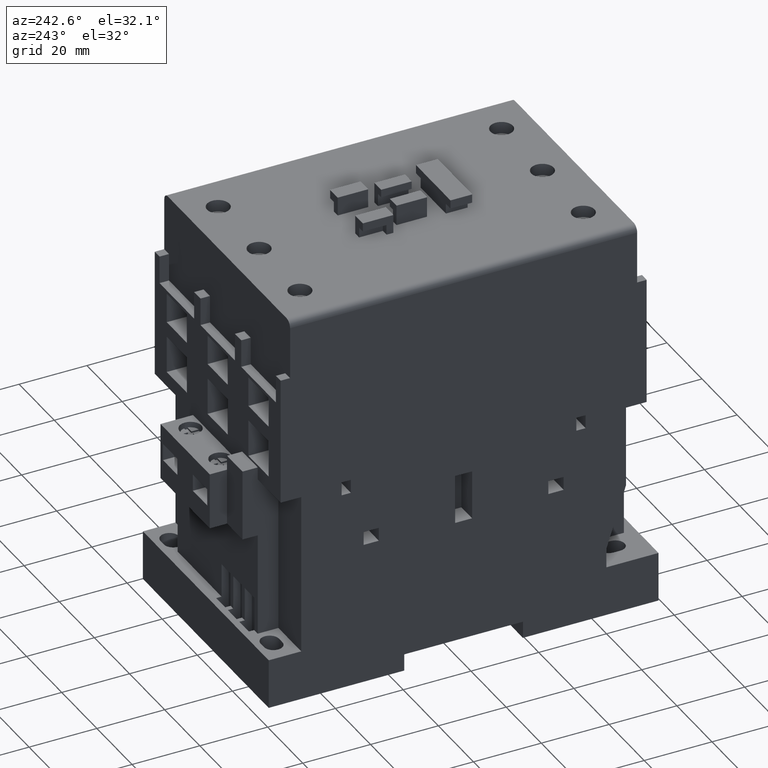
[diagram: clean part render]
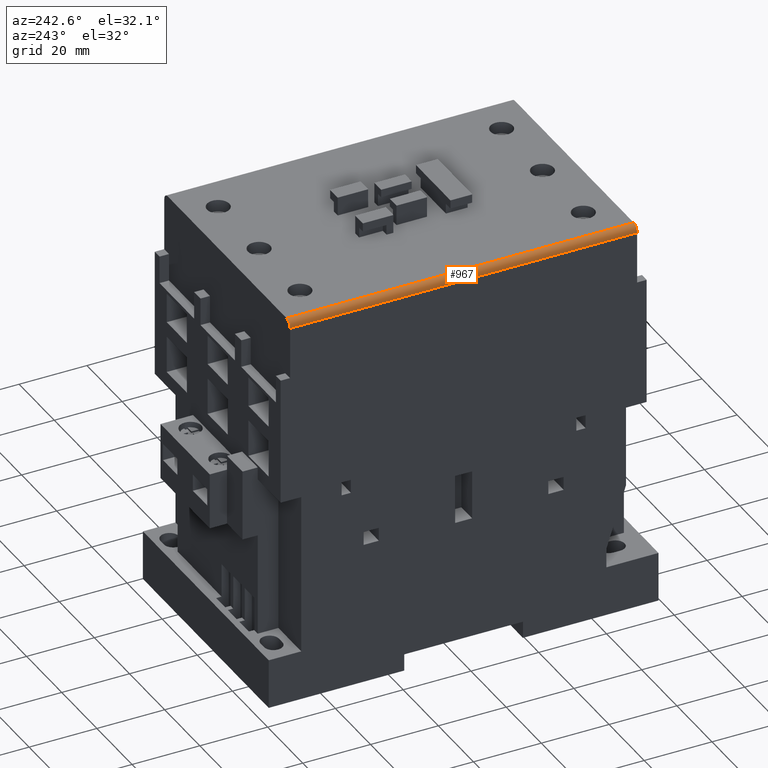
[diagram: same view with one face highlighted and labeled with its STEP entity id]
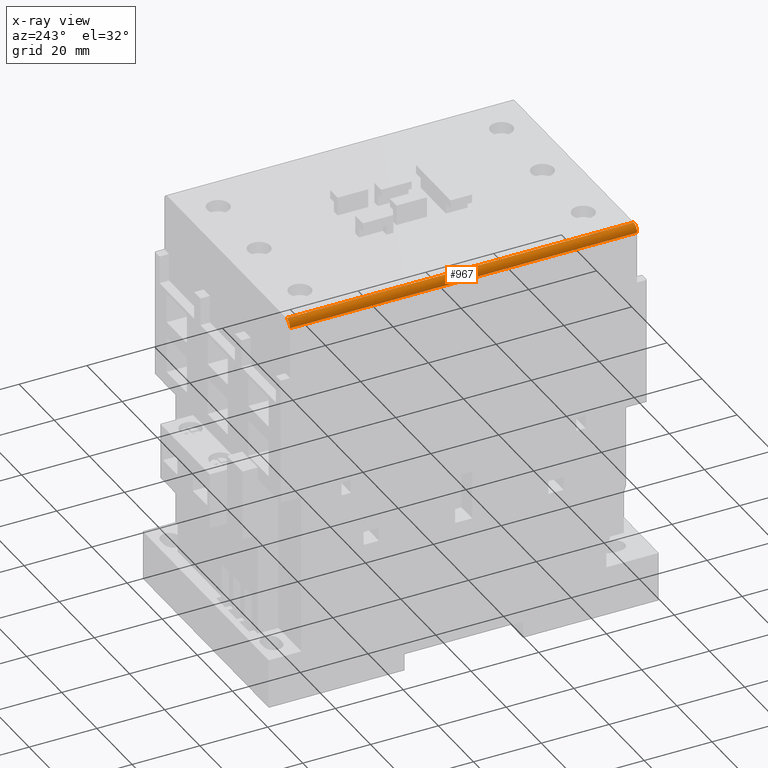
[diagram: x-ray of the same camera — body ghosted, the highlighted face saturated]
A machine part, auxiliary view. The second image highlights one B-rep face of the part: STEP entity #967.
The next image is the same camera in x-ray: the body ghosted, the highlighted face saturated — about 0% of this face is hidden behind the body in this view.
In plain terms, the highlighted cylindrical surface (edge-blend (fillet) strip) has radius 2 mm, axis along (0, -1, 0).
Its self-contained STEP definition (entity closure, byte-faithful):
#121=CYLINDRICAL_SURFACE('',#9001,2.);
#173=CIRCLE('',#8673,2.);
#178=CIRCLE('',#8751,2.);
#547=FACE_OUTER_BOUND('',#2075,.T.);
#967=ADVANCED_FACE('',(#547),#121,.T.);
#2075=EDGE_LOOP('',(#4014,#4015,#4016,#4017));
#4014=ORIENTED_EDGE('',*,*,#5746,.F.);
#4015=ORIENTED_EDGE('',*,*,#5452,.F.);
#4016=ORIENTED_EDGE('',*,*,#5878,.F.);
#4017=ORIENTED_EDGE('',*,*,#5486,.F.);
#4656=VERTEX_POINT('',#11580);
#4657=VERTEX_POINT('',#11582);
#4686=VERTEX_POINT('',#11645);
#4687=VERTEX_POINT('',#11647);
#5452=EDGE_CURVE('',#4656,#4657,#6615,.T.);
#5486=EDGE_CURVE('',#4686,#4687,#6643,.T.);
#5746=EDGE_CURVE('',#4657,#4686,#173,.T.);
#5878=EDGE_CURVE('',#4687,#4656,#178,.T.);
#6615=LINE('',#11581,#7668);
#6643=LINE('',#11646,#7696);
#7668=VECTOR('',#9305,1.);
#7696=VECTOR('',#9347,1.);
#8673=AXIS2_PLACEMENT_3D('',#12157,#9675,#9676);
#8751=AXIS2_PLACEMENT_3D('',#12437,#9958,#9959);
#9001=AXIS2_PLACEMENT_3D('',#13206,#10809,#10810);
#9305=DIRECTION('',(0.,-1.,0.));
#9347=DIRECTION('',(0.,1.,0.));
#9675=DIRECTION('',(0.,-1.,0.));
#9676=DIRECTION('',(0.,0.,-1.));
#9958=DIRECTION('',(0.,1.,0.));
#9959=DIRECTION('',(0.,0.,1.));
#10809=DIRECTION('',(0.,-1.,0.));
#10810=DIRECTION('',(0.,0.,-1.));
#11580=CARTESIAN_POINT('',(-33.8,51.2,112.55));
#11581=CARTESIAN_POINT('',(-33.8,-51.2,112.55));
#11582=CARTESIAN_POINT('',(-33.8,-51.2,112.55));
#11645=CARTESIAN_POINT('',(-35.8,-51.2,110.55));
#11646=CARTESIAN_POINT('',(-35.8,51.2,110.55));
#11647=CARTESIAN_POINT('',(-35.8,51.2,110.55));
#12157=CARTESIAN_POINT('',(-33.8,-51.2,110.55));
#12437=CARTESIAN_POINT('',(-33.8,51.2,110.55));
#13206=CARTESIAN_POINT('',(-33.8,-17.5,110.55));